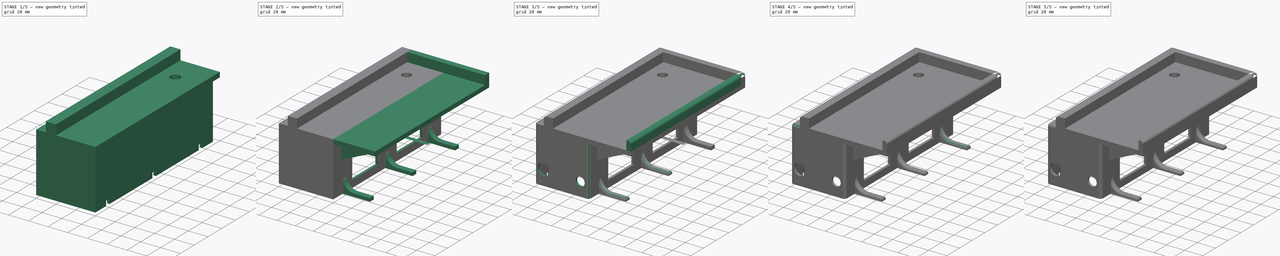
[diagram: build sequence overview — one tinted view per stage of 5, left to right]
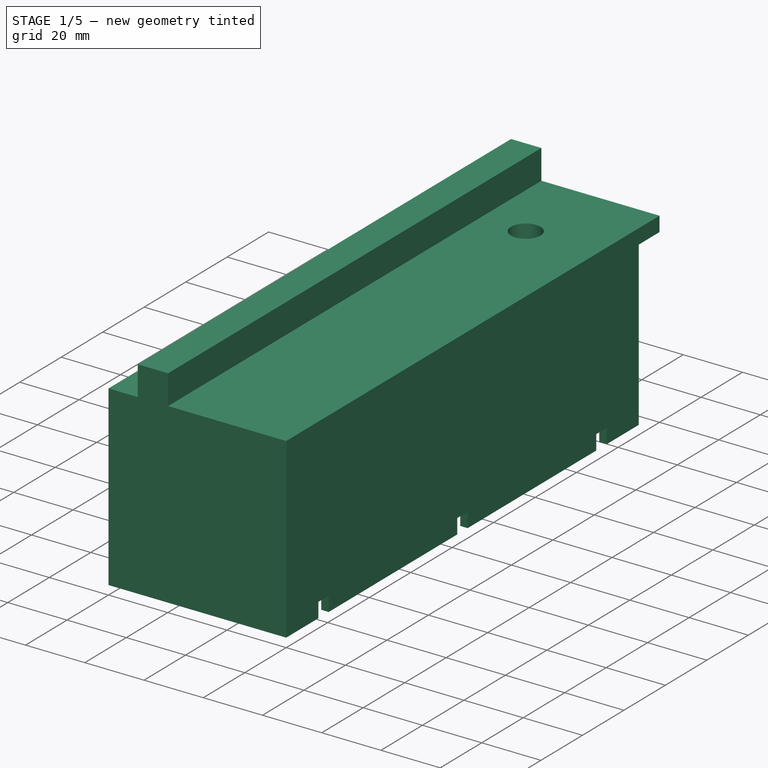
[diagram: stage 1 of 5 — iso view after this stage's code; geometry added in this stage tinted green]
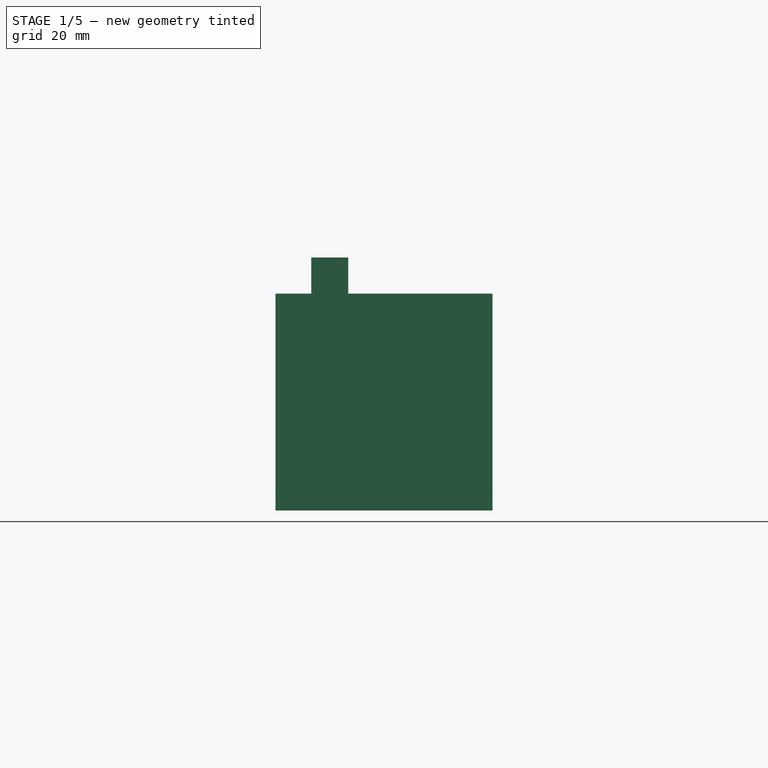
[diagram: stage 1 of 5 — front view after this stage's code; geometry added in this stage tinted green]
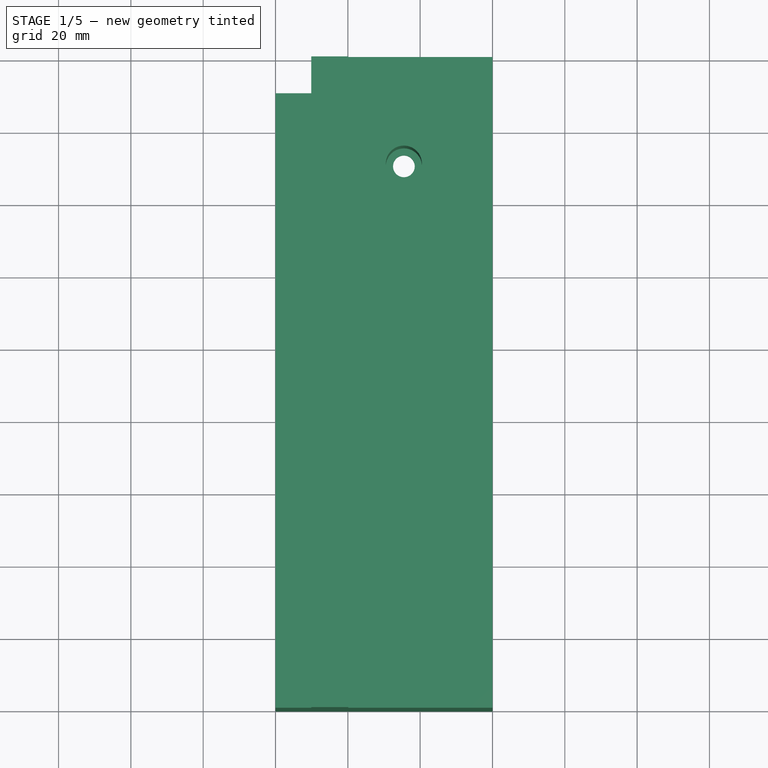
[diagram: stage 1 of 5 — top view after this stage's code; geometry added in this stage tinted green]
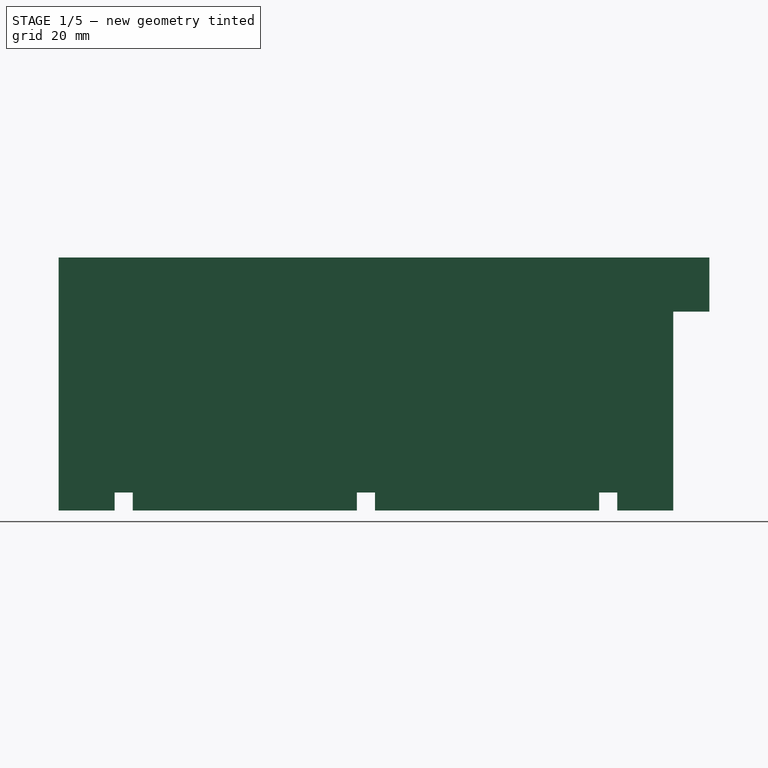
[diagram: stage 1 of 5 — right view after this stage's code; geometry added in this stage tinted green]
FCSTD DOCUMENT  (FreeCAD 1.0R38641 +468 (Git))
Label: phone_stand
License: All rights reserved
LicenseURL: http://en.wikipedia.org/wiki/All_rights_reserved
objects: Sketcher::SketchObject×23, PartDesign::Pocket×14, PartDesign::Fillet×13, PartDesign::Pad×10, PartDesign::Body×2, PartDesign::Thickness×1, Part::Feature×1, PartDesign::SubShapeBinder×1, Measure::MeasureLength×1
note: 164 computed .brp shape members not serialized (recipe doc carries the construction recipe); baked Part::Feature solids carry a one-line shape summary decoded from their .brp

FEATURE [Sketcher::SketchObject] Sketch
  ArcFitTolerance = 1e-06
  AttachmentSupport = -> [XY_Plane]
  FullyConstrained = true
  MakeInternals = false
  MapMode = 5
  sketch-geometry (4):
    g0: LineSegment StartX=0 StartY=0 StartZ=0 EndX=60 EndY=0 EndZ=0
    g1: LineSegment StartX=60 StartY=0 StartZ=0 EndX=60 EndY=170 EndZ=0
    g2: LineSegment StartX=60 StartY=170 StartZ=0 EndX=0 EndY=170 EndZ=0
    g3: LineSegment StartX=0 StartY=170 StartZ=0 EndX=0 EndY=0 EndZ=0
  constraints (11):
    c: Coincident(g0,g1)
    c: Coincident(g1,g2)
    c: Coincident(g2,g3)
    c: Coincident(g3,g0)
    c: Horizontal(g0)
    c: Horizontal(g2)
    c: Vertical(g1)
    c: Vertical(g3)
    c: Distance(g1,g3) = 60
    c: Distance(g0,g2) = 170
    c: Coincident(g0,g-1)
FEATURE [PartDesign::Pad] Pad
  Direction = (0,0,1)
  Length = 60
  Length2 = 10
  Profile = -> Sketch
  ReferenceAxis = -> Sketch [N_Axis]
  Refine = true
  Suppressed = false
  Type = 0
FEATURE [Sketcher::SketchObject] Sketch001
  ArcFitTolerance = 1e-06
  AttachmentSupport = -> [Pad]
  FullyConstrained = true
  MakeInternals = false
  MapMode = 5
  Placement = pos=(0,0,60) rot=(0,0,1;0rad)
  sketch-geometry (1):
    g0: Circle CenterX=35.5 CenterY=150.5 CenterZ=0 NormalX=0 NormalY=0 NormalZ=1 AngleXU=0 Radius=5
  constraints (3):
    c: Diameter(g0) = 10
    c: Distance(g0,g-2) = 30.5
    c: Distance(g0,g-1) = 145.5
FEATURE [PartDesign::Pocket] Pocket
  BaseFeature = -> Pad
  Direction = (0,0,-1)
  Length = 44
  Length2 = 5
  Profile = -> Sketch001 [Edge1]
  ReferenceAxis = -> Sketch001 [N_Axis]
  Refine = true
  Suppressed = false
  Type = 0
FEATURE [PartDesign::Thickness] Thickness
  Base = -> Pocket [Face4]
  BaseFeature = -> Pocket
  Intersection = false
  Join = 0
  Mode = 0
  Refine = true
  Reversed = true
  SupportTransform = false
  Suppressed = false
  Value = 2.5
FEATURE [Sketcher::SketchObject] Sketch002
  ArcFitTolerance = 1e-06
  AttachmentSupport = -> [Thickness]
  FullyConstrained = false
  MakeInternals = false
  MapMode = 5
  Placement = pos=(0,0,13.5) rot=(1,0,0;3.14159rad)
  sketch-geometry (1):
    g0: Circle CenterX=35.4983 CenterY=-150.53 CenterZ=0 NormalX=0 NormalY=0 NormalZ=1 AngleXU=0 Radius=3
  constraints (1):
    c: Diameter(g0) = 6
FEATURE [PartDesign::Pocket] Pocket001
  BaseFeature = -> Thickness
  Direction = (0,0,1)
  Length = 5
  Length2 = 5
  Profile = -> Sketch002 [Edge1]
  ReferenceAxis = -> Sketch002 [N_Axis]
  Refine = true
  Suppressed = false
  Type = 0
FEATURE [Sketcher::SketchObject] Sketch003
  ArcFitTolerance = 1e-06
  AttachmentSupport = -> [Pocket001]
  FullyConstrained = true
  MakeInternals = false
  MapMode = 5
  Placement = pos=(0,0,0) rot=(0.57735,-0.57735,-0.57735;2.0944rad)
  sketch-geometry (12):
    g0: LineSegment StartX=-15.5 StartY=0 StartZ=0 EndX=-15.5 EndY=5 EndZ=0
    g1: LineSegment StartX=-15.5 StartY=5 StartZ=0 EndX=-20.5 EndY=5 EndZ=0
    g2: LineSegment StartX=-20.5 StartY=5 StartZ=0 EndX=-20.5 EndY=0 EndZ=0
    g3: LineSegment StartX=-20.5 StartY=0 StartZ=0 EndX=-15.5 EndY=0 EndZ=0
    g4: LineSegment StartX=-87.5 StartY=0 StartZ=0 EndX=-82.5 EndY=0 EndZ=0
    g5: LineSegment StartX=-82.5 StartY=0 StartZ=0 EndX=-82.5 EndY=5 EndZ=0
    g6: LineSegment StartX=-82.5 StartY=5 StartZ=0 EndX=-87.5 EndY=5 EndZ=0
    g7: LineSegment StartX=-87.5 StartY=5 StartZ=0 EndX=-87.5 EndY=0 EndZ=0
    g8: LineSegment StartX=-149.5 StartY=0 StartZ=0 EndX=-149.5 EndY=5 EndZ=0
    g9: LineSegment StartX=-149.5 StartY=5 StartZ=0 EndX=-154.5 EndY=5 EndZ=0
    g10: LineSegment StartX=-154.5 StartY=5 StartZ=0 EndX=-154.5 EndY=0 EndZ=0
    g11: LineSegment StartX=-154.5 StartY=0 StartZ=0 EndX=-149.5 EndY=0 EndZ=0
  constraints (36):
    c: Coincident(g0,g1)
    c: Coincident(g1,g2)
    c: Coincident(g2,g3)
    c: Coincident(g3,g0)
    c: Vertical(g0)
    c: Vertical(g2)
    c: Horizontal(g1)
    c: Horizontal(g3)
    c: Distance(g0,g2) = 5
    c: Distance(g1,g3) = 5
    c: PointOnObject(g0,g-1)
    c: Distance(g-2,g0) = 15.5
    c: Coincident(g4,g5)
    c: Coincident(g5,g6)
    c: Coincident(g6,g7)
    c: Coincident(g7,g4)
    c: Horizontal(g4)
    c: Horizontal(g6)
    c: Vertical(g5)
    c: Vertical(g7)
    c: Distance(g5,g7) = 5
    c: Distance(g4,g6) = 5
    c: PointOnObject(g4,g-1)
    c: Distance(g2,g5) = 62
    c: Coincident(g8,g9)
    c: Coincident(g9,g10)
    c: Coincident(g10,g11)
    c: Coincident(g11,g8)
    c: Vertical(g8)
    c: Vertical(g10)
    c: Horizontal(g9)
    c: Horizontal(g11)
    c: Distance(g8,g10) = 5
    c: Distance(g9,g11) = 5
    c: PointOnObject(g8,g-1)
    c: Distance(g7,g8) = 62
FEATURE [PartDesign::Pocket] Pocket002
  BaseFeature = -> Pocket001
  Direction = (1,0,0)
  Length = 60
  Length2 = 5
  Profile = -> Sketch003
  ReferenceAxis = -> Sketch003 [N_Axis]
  Refine = true
  Suppressed = false
  Type = 0
FEATURE [Sketcher::SketchObject] Sketch004
  ArcFitTolerance = 1e-06
  AttachmentSupport = -> [Pocket002]
  FullyConstrained = true
  MakeInternals = false
  MapMode = 5
  Placement = pos=(0,170,0) rot=(0,0.707107,0.707107;3.14159rad)
  sketch-geometry (4):
    g0: LineSegment StartX=-57.5 StartY=0 StartZ=0 EndX=-2.5 EndY=0 EndZ=0
    g1: LineSegment StartX=-2.5 StartY=0 StartZ=0 EndX=-2.5 EndY=25 EndZ=0
    g2: LineSegment StartX=-2.5 StartY=25 StartZ=0 EndX=-57.5 EndY=25 EndZ=0
    g3: LineSegment StartX=-57.5 StartY=25 StartZ=0 EndX=-57.5 EndY=0 EndZ=0
  constraints (12):
    c: Coincident(g0,g1)
    c: Coincident(g1,g2)
    c: Coincident(g2,g3)
    c: Coincident(g3,g0)
    c: Horizontal(g0)
    c: Horizontal(g2)
    c: Vertical(g1)
    c: Vertical(g3)
    c: PointOnObject(g0,g-1)
    c: DistanceY(g1,g1) = 25
    c: Distance(g-2,g1) = 2.5
    c: DistanceX(g0,g0) = 55
FEATURE [PartDesign::Pocket] Pocket003
  BaseFeature = -> Pocket002
  Direction = (0,-1,2e-16)
  Length = 2.5
  Length2 = 5
  Profile = -> Sketch004
  ReferenceAxis = -> Sketch004 [N_Axis]
  Refine = true
  Suppressed = false
  Type = 0
FEATURE [Sketcher::SketchObject] Sketch005
  ArcFitTolerance = 1e-06
  AttachmentSupport = -> [Pocket003]
  FullyConstrained = false
  MakeInternals = false
  MapMode = 5
  Placement = pos=(0,0,60) rot=(0,0,1;0rad)
  sketch-geometry (4):
    g0: LineSegment StartX=9.875 StartY=180 StartZ=0 EndX=9.875 EndY=0 EndZ=0
    g1: LineSegment StartX=9.875 StartY=0 StartZ=0 EndX=20.125 EndY=0 EndZ=0
    g2: LineSegment StartX=20.125 StartY=0 StartZ=0 EndX=20.125 EndY=180 EndZ=0
    g3: LineSegment StartX=20.125 StartY=180 StartZ=0 EndX=9.875 EndY=180 EndZ=0
  constraints (9):
    c: Coincident(g0,g1)
    c: Coincident(g1,g2)
    c: Coincident(g2,g3)
    c: Coincident(g3,g0)
    c: Vertical(g0)
    c: Vertical(g2)
    c: Horizontal(g1)
    c: Horizontal(g3)
    c: PointOnObject(g1,g-1)
FEATURE [PartDesign::Pad] Pad001
  BaseFeature = -> Pocket003
  Direction = (0,0,1)
  Length = 10
  Length2 = 10
  Profile = -> Sketch005
  ReferenceAxis = -> Sketch005 [N_Axis]
  Refine = true
  Suppressed = false
  Type = 0
FEATURE [PartDesign::Body] Body001
  AllowCompound = false
  Group = -> [Binder,Pad002,Pocket004]
  Origin = -> Origin001
  Tip = -> Pocket004
FEATURE [Sketcher::SketchObject] Sketch006
  ArcFitTolerance = 1e-06
  AttachmentSupport = -> [Pad001]
  FullyConstrained = false
  MakeInternals = false
  MapMode = 5
  Placement = pos=(0,170,0) rot=(0,0.707107,0.707107;3.14159rad)
  sketch-geometry (4):
    g0: LineSegment StartX=-59.9967 StartY=60 StartZ=0 EndX=-59.9967 EndY=55 EndZ=0
    g1: LineSegment StartX=-59.9967 StartY=55 StartZ=0 EndX=-9.99599 EndY=55 EndZ=0
    g2: LineSegment StartX=-9.99599 StartY=55 StartZ=0 EndX=-9.99599 EndY=60 EndZ=0
    g3: LineSegment StartX=-9.99599 StartY=60 StartZ=0 EndX=-59.9967 EndY=60 EndZ=0
  constraints (9):
    c: Coincident(g0,g1)
    c: Coincident(g1,g2)
    c: Coincident(g2,g3)
    c: Coincident(g3,g0)
    c: Vertical(g0)
    c: Vertical(g2)
    c: Horizontal(g1)
    c: Horizontal(g3)
    c: Distance(g0,g0) = 5
FEATURE [PartDesign::Pad] Pad003
  BaseFeature = -> Pad001
  Direction = (0,1,-2e-16)
  Length = 10
  Length2 = 10
  Profile = -> Sketch006
  ReferenceAxis = -> Sketch006 [N_Axis]
  Refine = true
  Suppressed = false
  Type = 0
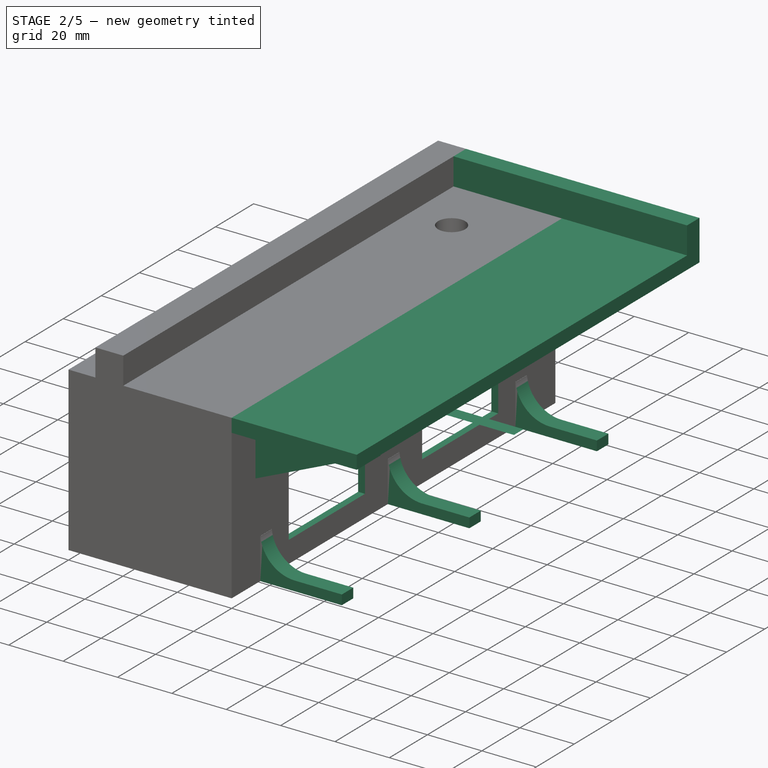
[diagram: stage 2 of 5 — iso view after this stage's code; geometry added in this stage tinted green]
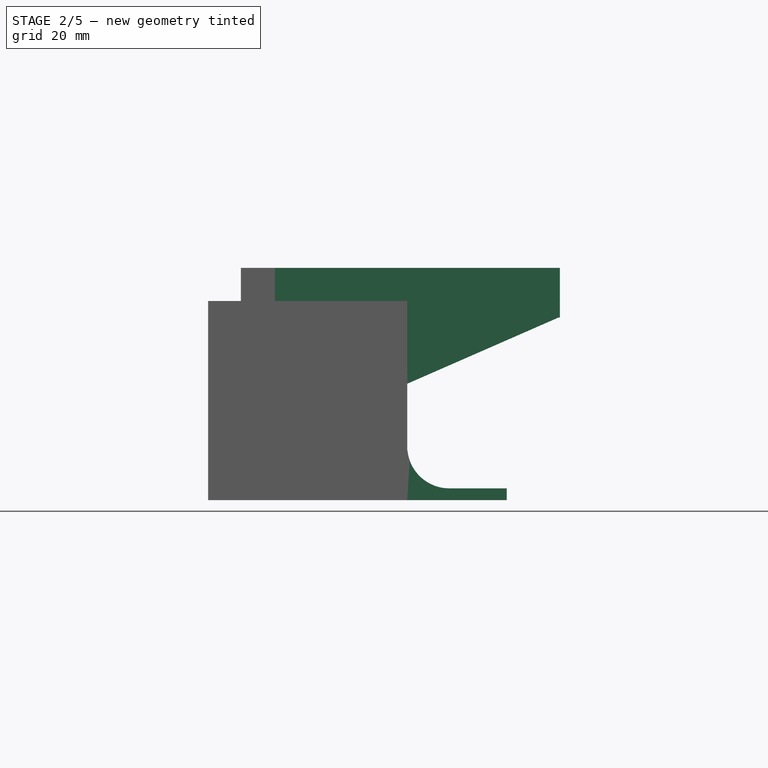
[diagram: stage 2 of 5 — front view after this stage's code; geometry added in this stage tinted green]
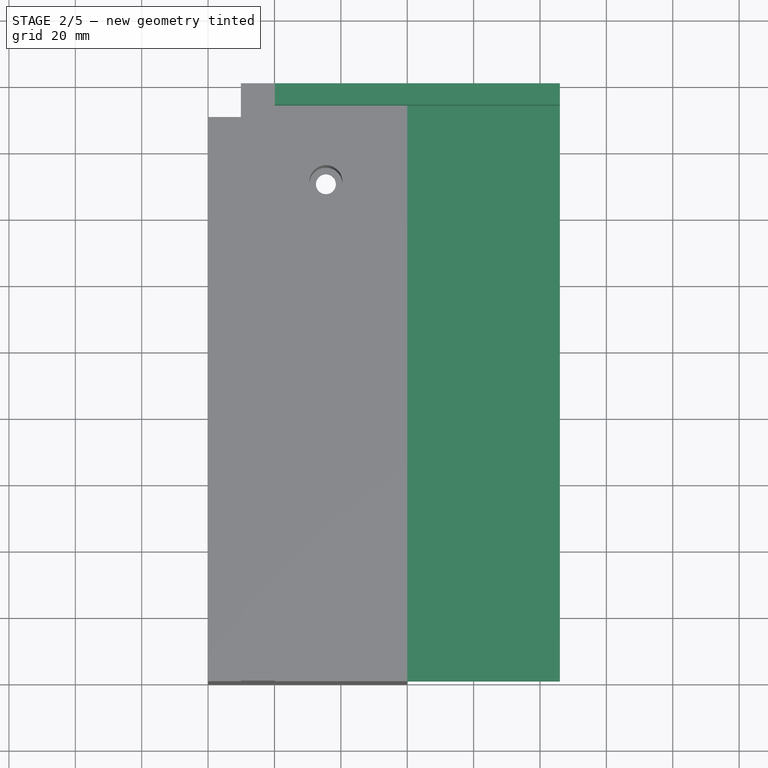
[diagram: stage 2 of 5 — top view after this stage's code; geometry added in this stage tinted green]
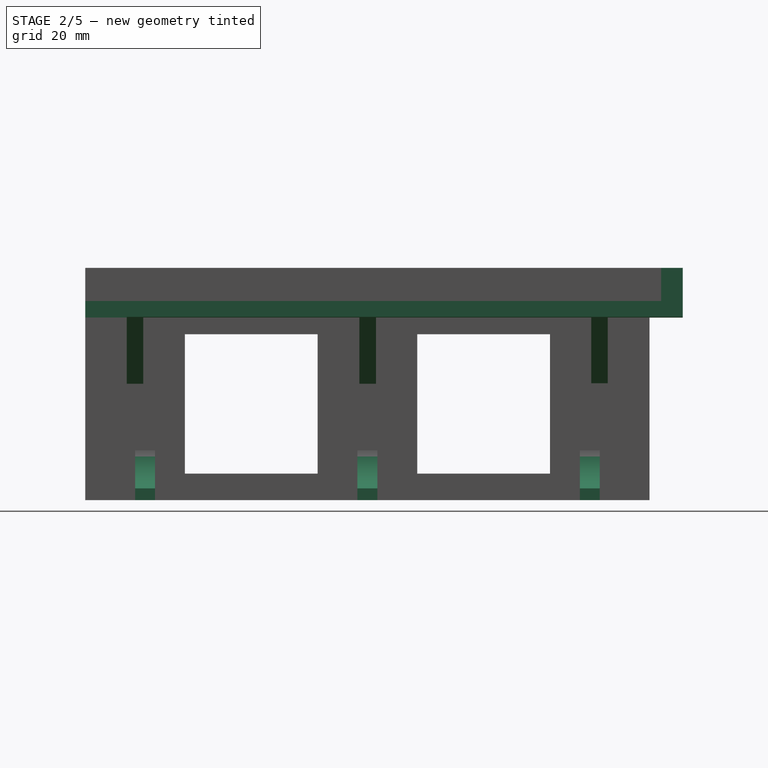
[diagram: stage 2 of 5 — right view after this stage's code; geometry added in this stage tinted green]
FEATURE [Sketcher::SketchObject] Sketch007
  ArcFitTolerance = 1e-06
  AttachmentSupport = -> [Pad003]
  FullyConstrained = false
  MakeInternals = false
  MapMode = 5
  Placement = pos=(0,1.32e-14,60) rot=(0,0,1;0rad)
  sketch-geometry (4):
    g0: LineSegment StartX=20.125 StartY=180 StartZ=0 EndX=20.125 EndY=173.48 EndZ=0
    g1: LineSegment StartX=20.125 StartY=173.48 StartZ=0 EndX=106 EndY=173.48 EndZ=0
    g2: LineSegment StartX=106 StartY=173.48 StartZ=0 EndX=106 EndY=180 EndZ=0
    g3: LineSegment StartX=106 StartY=180 StartZ=0 EndX=20.125 EndY=180 EndZ=0
  constraints (9):
    c: Coincident(g0,g1)
    c: Coincident(g1,g2)
    c: Coincident(g2,g3)
    c: Coincident(g3,g0)
    c: Vertical(g0)
    c: Vertical(g2)
    c: Horizontal(g1)
    c: Horizontal(g3)
    c: DistanceY(g2,g2) = 6.52
FEATURE [PartDesign::Pad] Pad004
  BaseFeature = -> Pad003
  Direction = (0,0,1)
  Length = 10
  Length2 = 10
  Profile = -> Sketch007
  ReferenceAxis = -> Sketch007 [N_Axis]
  Refine = true
  Suppressed = false
  Type = 0
FEATURE [Sketcher::SketchObject] Sketch008
  ArcFitTolerance = 1e-06
  AttachmentSupport = -> [Pad004]
  FullyConstrained = false
  MakeInternals = false
  MapMode = 5
  Placement = pos=(60,0,0) rot=(0.57735,0.57735,0.57735;2.0944rad)
  sketch-geometry (4):
    g0: LineSegment StartX=180 StartY=60.0204 StartZ=0 EndX=0 EndY=60.0204 EndZ=0
    g1: LineSegment StartX=0 StartY=60.0204 StartZ=0 EndX=0 EndY=55.0204 EndZ=0
    g2: LineSegment StartX=0 StartY=55.0204 StartZ=0 EndX=180 EndY=55.0204 EndZ=0
    g3: LineSegment StartX=180 StartY=55.0204 StartZ=0 EndX=180 EndY=60.0204 EndZ=0
  constraints (9):
    c: Coincident(g0,g1)
    c: Coincident(g1,g2)
    c: Coincident(g2,g3)
    c: Coincident(g3,g0)
    c: Horizontal(g0)
    c: Horizontal(g2)
    c: Vertical(g1)
    c: Vertical(g3)
    c: PointOnObject(g1,g-2)
FEATURE [PartDesign::Pad] Pad005
  BaseFeature = -> Pad004
  Direction = (1,0,0)
  Length = 46
  Length2 = 10
  Profile = -> Sketch008
  ReferenceAxis = -> Sketch008 [N_Axis]
  Refine = true
  Suppressed = false
  Type = 0
FEATURE [Sketcher::SketchObject] Sketch009
  ArcFitTolerance = 1e-06
  AttachmentSupport = -> [Pad005]
  FullyConstrained = false
  MakeInternals = false
  MapMode = 5
  Placement = pos=(60,0,0) rot=(0.57735,0.57735,0.57735;2.0944rad)
  sketch-geometry (8):
    g0: LineSegment StartX=30 StartY=8 StartZ=0 EndX=70 EndY=8 EndZ=0
    g1: LineSegment StartX=70 StartY=8 StartZ=0 EndX=70 EndY=50 EndZ=0
    g2: LineSegment StartX=70 StartY=50 StartZ=0 EndX=30 EndY=50 EndZ=0
    g3: LineSegment StartX=30 StartY=50 StartZ=0 EndX=30 EndY=8 EndZ=0
    g4: LineSegment StartX=100 StartY=50 StartZ=0 EndX=100 EndY=8 EndZ=0
    g5: LineSegment StartX=100 StartY=8 StartZ=0 EndX=140 EndY=8 EndZ=0
    g6: LineSegment StartX=140 StartY=8 StartZ=0 EndX=140 EndY=50 EndZ=0
    g7: LineSegment StartX=140 StartY=50 StartZ=0 EndX=100 EndY=50 EndZ=0
  constraints (21):
    c: Coincident(g0,g1)
    c: Coincident(g1,g2)
    c: Coincident(g2,g3)
    c: Coincident(g3,g0)
    c: Horizontal(g0)
    c: Horizontal(g2)
    c: Vertical(g1)
    c: Vertical(g3)
    c: Coincident(g4,g5)
    c: Coincident(g5,g6)
    c: Coincident(g6,g7)
    c: Coincident(g7,g4)
    c: Vertical(g4)
    c: Vertical(g6)
    c: Horizontal(g5)
    c: Horizontal(g7)
    c: Distance(g-1,g0) = 8
    c: Distance(g-1,g5) = 8
    c: Distance(g-2,g3) = 30
    c: DistanceX(g2,g2) = 40
    c: DistanceX(g7,g7) = 40
FEATURE [PartDesign::Pocket] Pocket005
  BaseFeature = -> Pad005
  Direction = (-1,0,0)
  Length = 100
  Length2 = 5
  Profile = -> Sketch009
  ReferenceAxis = -> Sketch009 [N_Axis]
  Refine = true
  Suppressed = false
  Type = 0
FEATURE [Sketcher::SketchObject] Sketch010
  ArcFitTolerance = 1e-06
  AttachmentSupport = -> [Pocket005]
  FullyConstrained = false
  MakeInternals = false
  MapMode = 5
  Placement = pos=(60,0,0) rot=(0.57735,0.57735,0.57735;2.0944rad)
  sketch-geometry (12):
    g0: LineSegment StartX=12.4815 StartY=55.0899 StartZ=0 EndX=12.4815 EndY=35.0899 EndZ=0
    g1: LineSegment StartX=12.4815 StartY=35.0899 StartZ=0 EndX=17.4815 EndY=35.0899 EndZ=0
    g2: LineSegment StartX=17.4815 StartY=35.0899 StartZ=0 EndX=17.4815 EndY=55.0899 EndZ=0
    g3: LineSegment StartX=17.4815 StartY=55.0899 StartZ=0 EndX=12.4815 EndY=55.0899 EndZ=0
    g4: LineSegment StartX=82.574 StartY=55.0761 StartZ=0 EndX=82.574 EndY=35.0761 EndZ=0
    g5: LineSegment StartX=82.574 StartY=35.0761 StartZ=0 EndX=87.574 EndY=35.0761 EndZ=0
    g6: LineSegment StartX=87.574 StartY=35.0761 StartZ=0 EndX=87.574 EndY=55.0761 EndZ=0
    g7: LineSegment StartX=87.574 StartY=55.0761 StartZ=0 EndX=82.574 EndY=55.0761 EndZ=0
    g8: LineSegment StartX=152.424 StartY=55.2134 StartZ=0 EndX=152.424 EndY=35.2134 EndZ=0
    g9: LineSegment StartX=152.424 StartY=35.2134 StartZ=0 EndX=157.424 EndY=35.2134 EndZ=0
    g10: LineSegment StartX=157.424 StartY=35.2134 StartZ=0 EndX=157.424 EndY=55.2134 EndZ=0
    g11: LineSegment StartX=157.424 StartY=55.2134 StartZ=0 EndX=152.424 EndY=55.2134 EndZ=0
  constraints (30):
    c: Coincident(g0,g1)
    c: Coincident(g1,g2)
    c: Coincident(g2,g3)
    c: Coincident(g3,g0)
    c: Vertical(g0)
    c: Vertical(g2)
    c: Horizontal(g1)
    c: Horizontal(g3)
    c: Coincident(g4,g5)
    c: Coincident(g5,g6)
    c: Coincident(g6,g7)
    c: Coincident(g7,g4)
    c: Vertical(g4)
    c: Vertical(g6)
    c: Horizontal(g5)
    c: Horizontal(g7)
    c: Coincident(g8,g9)
    c: Coincident(g9,g10)
    c: Coincident(g10,g11)
    c: Coincident(g11,g8)
    c: Vertical(g8)
    c: Vertical(g10)
    c: Horizontal(g9)
    c: Horizontal(g11)
    c: DistanceY(g2,g2) = 20
    c: DistanceX(g1,g1) = 5
    c: DistanceY(g6,g6) = 20
    c: DistanceX(g5,g5) = 5
    c: DistanceX(g9,g9) = 5
    c: DistanceY(g10,g10) = 20
FEATURE [PartDesign::Pad] Pad006
  BaseFeature = -> Pocket005
  Direction = (1,0,0)
  Length = 46
  Length2 = 10
  Profile = -> Sketch010
  ReferenceAxis = -> Sketch010 [N_Axis]
  Refine = true
  Suppressed = false
  Type = 0
FEATURE [Sketcher::SketchObject] Sketch011
  ArcFitTolerance = 1e-06
  AttachmentSupport = -> [Pad006]
  FullyConstrained = false
  MakeInternals = false
  MapMode = 5
  Placement = pos=(0,12.4815,0) rot=(1,0,0;1.5708rad)
  sketch-geometry (3):
    g0: LineSegment StartX=60.0003 StartY=35.078 StartZ=0 EndX=106 EndY=55.213 EndZ=0
    g1: LineSegment StartX=106 StartY=55.213 StartZ=0 EndX=106 EndY=35.078 EndZ=0
    g2: LineSegment StartX=106 StartY=35.078 StartZ=0 EndX=60.0003 EndY=35.078 EndZ=0
  constraints (5):
    c: Coincident(g1,g0)
    c: Vertical(g1)
    c: Coincident(g2,g1)
    c: Coincident(g2,g0)
    c: Horizontal(g2)
FEATURE [PartDesign::Pocket] Pocket006
  BaseFeature = -> Pad006
  Direction = (0,1,-2e-16)
  Length = 200
  Length2 = 5
  Profile = -> Sketch011
  ReferenceAxis = -> Sketch011 [N_Axis]
  Refine = true
  Suppressed = false
  Type = 0
FEATURE [Sketcher::SketchObject] Sketch012
  ArcFitTolerance = 1e-06
  AttachmentSupport = -> [Pocket006]
  FullyConstrained = false
  MakeInternals = false
  MapMode = 5
  Placement = pos=(60,0,0) rot=(0.57735,0.57735,0.57735;2.0944rad)
  sketch-geometry (12):
    g0: LineSegment StartX=149 StartY=0 StartZ=0 EndX=155 EndY=0 EndZ=0
    g1: LineSegment StartX=155 StartY=0 StartZ=0 EndX=155 EndY=15 EndZ=0
    g2: LineSegment StartX=155 StartY=15 StartZ=0 EndX=149 EndY=15 EndZ=0
    g3: LineSegment StartX=149 StartY=15 StartZ=0 EndX=149 EndY=0 EndZ=0
    g4: LineSegment StartX=81.9947 StartY=15 StartZ=0 EndX=81.9947 EndY=0 EndZ=0
    g5: LineSegment StartX=81.9947 StartY=0 StartZ=0 EndX=88.0053 EndY=0 EndZ=0
    g6: LineSegment StartX=88.0053 StartY=0 StartZ=0 EndX=88.0053 EndY=15 EndZ=0
    g7: LineSegment StartX=88.0053 StartY=15 StartZ=0 EndX=81.9947 EndY=15 EndZ=0
    g8: LineSegment StartX=15.007 StartY=15 StartZ=0 EndX=15.007 EndY=0 EndZ=0
    g9: LineSegment StartX=15.007 StartY=0 StartZ=0 EndX=20.993 EndY=0 EndZ=0
    g10: LineSegment StartX=20.993 StartY=0 StartZ=0 EndX=20.993 EndY=15 EndZ=0
    g11: LineSegment StartX=20.993 StartY=15 StartZ=0 EndX=15.007 EndY=15 EndZ=0
  constraints (26):
    c: Coincident(g0,g1)
    c: Coincident(g1,g2)
    c: Coincident(g2,g3)
    c: Coincident(g3,g0)
    c: Horizontal(g0)
    c: Horizontal(g2)
    c: Vertical(g1)
    c: Vertical(g3)
    c: Coincident(g4,g5)
    c: Coincident(g5,g6)
    c: Coincident(g6,g7)
    c: Coincident(g7,g4)
    c: Vertical(g4)
    c: Vertical(g6)
    c: Horizontal(g5)
    c: Horizontal(g7)
    c: PointOnObject(g5,g-1)
    c: Coincident(g8,g9)
    c: Coincident(g9,g10)
    c: Coincident(g10,g11)
    c: Coincident(g11,g8)
    c: Vertical(g8)
    c: Vertical(g10)
    c: Horizontal(g9)
    c: Horizontal(g11)
    c: PointOnObject(g9,g-1)
FEATURE [PartDesign::Pad] Pad007
  BaseFeature = -> Pocket006
  Direction = (1,0,0)
  Length = 30
  Length2 = 10
  Profile = -> Sketch012
  ReferenceAxis = -> Sketch012 [N_Axis]
  Refine = true
  Suppressed = false
  Type = 0
FEATURE [Sketcher::SketchObject] Sketch013
  ArcFitTolerance = 1e-06
  AttachmentSupport = -> [Pad007]
  FullyConstrained = false
  MakeInternals = false
  MapMode = 5
  Placement = pos=(0,15.007,0) rot=(1,0,0;1.5708rad)
  sketch-geometry (5):
    g0: Circle CenterX=72.6476 CenterY=16.2003 CenterZ=0 NormalX=0 NormalY=0 NormalZ=1 AngleXU=0 Radius=12.6304
    g1: LineSegment StartX=72.649 StartY=3.56994 StartZ=0 EndX=100 EndY=3.56994 EndZ=0
    g2: LineSegment StartX=100 StartY=3.56994 StartZ=0 EndX=100 EndY=16.0528 EndZ=0
    g3: LineSegment StartX=100 StartY=16.0528 StartZ=0 EndX=72.649 EndY=16.0528 EndZ=0
    g4: LineSegment StartX=72.649 StartY=16.0528 StartZ=0 EndX=72.649 EndY=3.56994 EndZ=0
  constraints (9):
    c: Coincident(g1,g2)
    c: Coincident(g2,g3)
    c: Coincident(g3,g4)
    c: Coincident(g4,g1)
    c: Horizontal(g1)
    c: Horizontal(g3)
    c: Vertical(g2)
    c: Vertical(g4)
    c: PointOnObject(g1,g0)
FEATURE [PartDesign::Pocket] Pocket007
  BaseFeature = -> Pad007
  Direction = (0,1,-2e-16)
  Length = 200
  Length2 = 5
  Profile = -> Sketch013
  ReferenceAxis = -> Sketch013 [N_Axis]
  Refine = true
  Suppressed = false
  Type = 0
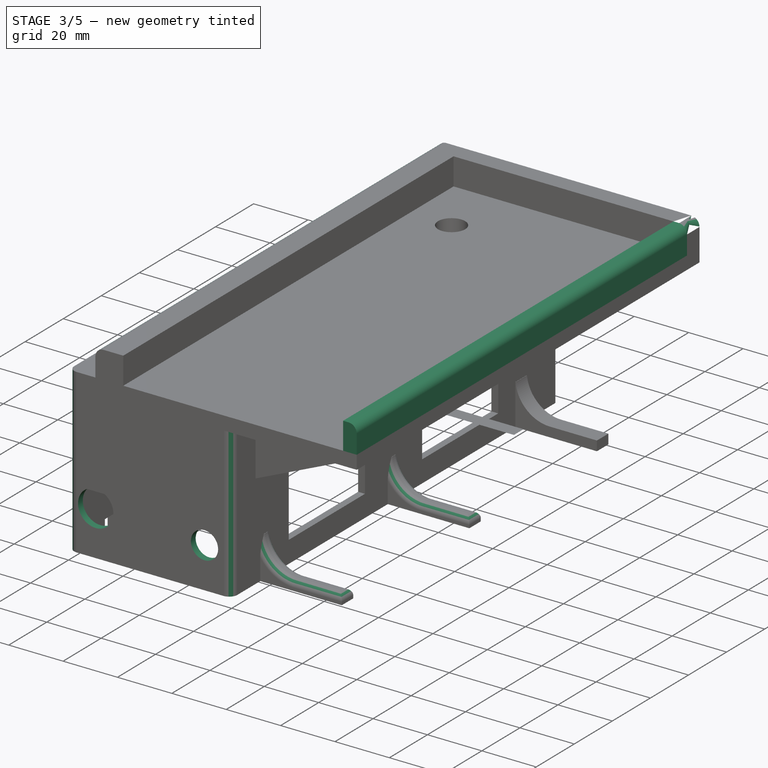
[diagram: stage 3 of 5 — iso view after this stage's code; geometry added in this stage tinted green]
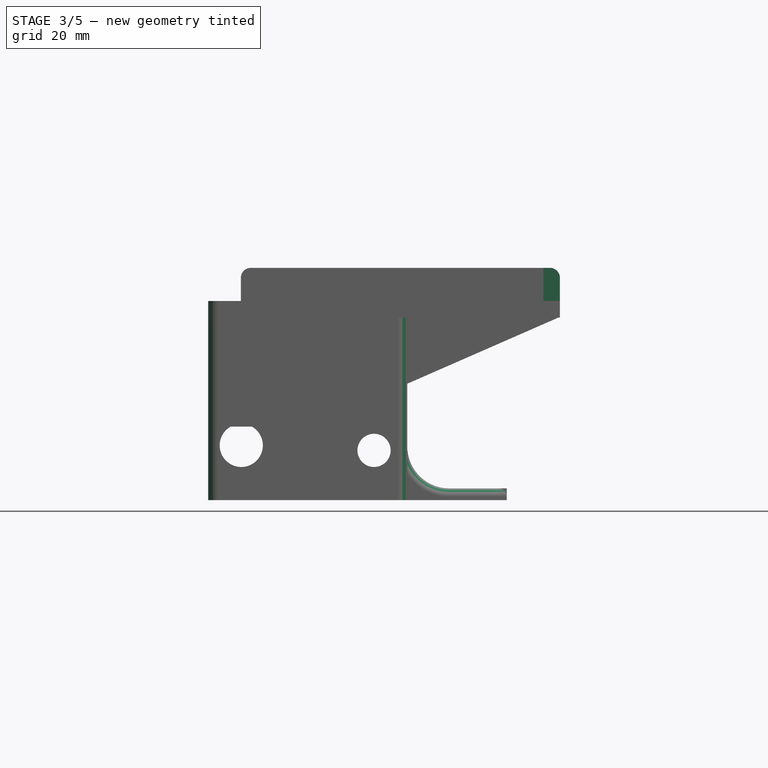
[diagram: stage 3 of 5 — front view after this stage's code; geometry added in this stage tinted green]
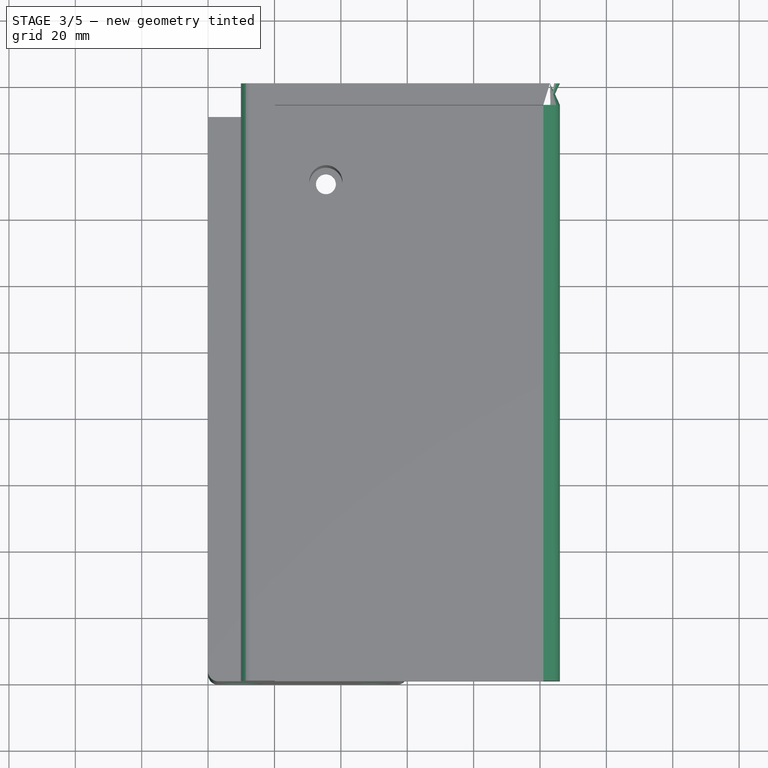
[diagram: stage 3 of 5 — top view after this stage's code; geometry added in this stage tinted green]
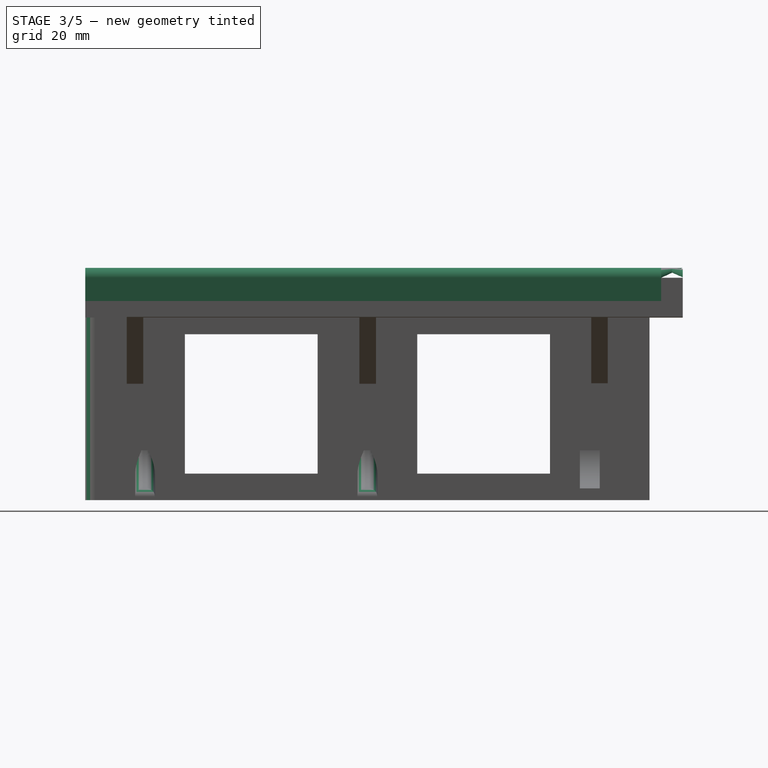
[diagram: stage 3 of 5 — right view after this stage's code; geometry added in this stage tinted green]
FEATURE [Sketcher::SketchObject] Sketch014
  ArcFitTolerance = 1e-06
  AttachmentSupport = -> [Pocket007]
  FullyConstrained = false
  MakeInternals = false
  MapMode = 5
  Placement = pos=(0,0,0) rot=(1,0,0;1.5708rad)
  sketch-geometry (3):
    g0: Circle CenterX=50 CenterY=15 CenterZ=0 NormalX=0 NormalY=0 NormalZ=1 AngleXU=0 Radius=5
    g1: ArcOfCircle CenterX=10 CenterY=16.5 CenterZ=0 NormalX=0 NormalY=0 NormalZ=1 AngleXU=0 Radius=6.5 StartAngle=2.08795 EndAngle=7.33683
    g2: LineSegment StartX=6.78636 StartY=22.15 StartZ=0 EndX=13.2136 EndY=22.15 EndZ=0
  constraints (8):
    c: Diameter(g0) = 10
    c: Distance(g0,g-1) = 10
    c: Coincident(g2,g1)
    c: Coincident(g2,g1)
    c: Horizontal(g2)
    c: Distance(g1,g2) = 5.65
    c: Radius(g1) = 6.5
    c: Distance(g1,g-1) = 10
FEATURE [PartDesign::Pocket] Pocket008
  BaseFeature = -> Pocket007
  Direction = (0,1,-2e-16)
  Length = 5
  Length2 = 5
  Profile = -> Sketch014
  ReferenceAxis = -> Sketch014 [N_Axis]
  Refine = true
  Suppressed = false
  Type = 0
FEATURE [Sketcher::SketchObject] Sketch015
  ArcFitTolerance = 1e-06
  AttachmentSupport = -> [Pocket008]
  FullyConstrained = false
  MakeInternals = false
  MapMode = 5
  Placement = pos=(0,0,60) rot=(0,0,1;0rad)
  sketch-geometry (4):
    g0: LineSegment [constr] StartX=100 StartY=173.463 StartZ=0 EndX=100 EndY=0 EndZ=0
    g1: LineSegment [constr] StartX=100 StartY=0 StartZ=0 EndX=106.049 EndY=0 EndZ=0
    g2: LineSegment [constr] StartX=106.049 StartY=0 StartZ=0 EndX=106.049 EndY=173.463 EndZ=0
    g3: LineSegment [constr] StartX=106.049 StartY=173.463 StartZ=0 EndX=100 EndY=173.463 EndZ=0
  constraints (9):
    c: Coincident(g0,g1)
    c: Coincident(g1,g2)
    c: Coincident(g2,g3)
    c: Coincident(g3,g0)
    c: Vertical(g0)
    c: Vertical(g2)
    c: Horizontal(g1)
    c: Horizontal(g3)
    c: PointOnObject(g1,g-1)
FEATURE [Sketcher::SketchObject] Sketch016
  ArcFitTolerance = 1e-06
  AttachmentSupport = -> [Pocket008]
  FullyConstrained = false
  MakeInternals = false
  MapMode = 5
  Placement = pos=(0,0,60) rot=(0,0,1;0rad)
  sketch-geometry (4):
    g0: LineSegment StartX=101 StartY=173.51 StartZ=0 EndX=101 EndY=0 EndZ=0
    g1: LineSegment StartX=101 StartY=0 StartZ=0 EndX=106 EndY=0 EndZ=0
    g2: LineSegment StartX=106 StartY=0 StartZ=0 EndX=106 EndY=173.51 EndZ=0
    g3: LineSegment StartX=106 StartY=173.51 StartZ=0 EndX=101 EndY=173.51 EndZ=0
  constraints (10):
    c: Coincident(g0,g1)
    c: Coincident(g1,g2)
    c: Coincident(g2,g3)
    c: Coincident(g3,g0)
    c: Vertical(g0)
    c: Vertical(g2)
    c: Horizontal(g1)
    c: Horizontal(g3)
    c: PointOnObject(g1,g-1)
    c: Distance(g1,g1) = 5
FEATURE [PartDesign::Pad] Pad008
  BaseFeature = -> Pocket008
  Direction = (0,0,1)
  Length = 10
  Length2 = 10
  Profile = -> Sketch016
  ReferenceAxis = -> Sketch016 [N_Axis]
  Refine = true
  Suppressed = false
  Type = 0
FEATURE [PartDesign::Fillet] Fillet
  Base = -> Pad008 [Edge325]
  BaseFeature = -> Pad008
  Radius = 3
  Refine = true
  SupportTransform = false
  Suppressed = false
  UseAllEdges = false
FEATURE [PartDesign::Fillet] Fillet001
  Base = -> Fillet [Edge38]
  BaseFeature = -> Fillet
  Radius = 3
  Refine = true
  SupportTransform = false
  Suppressed = false
  UseAllEdges = false
FEATURE [PartDesign::Fillet] Fillet002
  Base = -> Fillet001 [Edge34]
  BaseFeature = -> Fillet001
  Radius = 3
  Refine = true
  SupportTransform = false
  Suppressed = false
  UseAllEdges = false
FEATURE [PartDesign::Fillet] Fillet003
  Base = -> Fillet002 [Edge6]
  BaseFeature = -> Fillet002
  Radius = 3
  Refine = true
  SupportTransform = false
  Suppressed = false
  UseAllEdges = false
FEATURE [PartDesign::Fillet] Fillet004
  Base = -> Fillet003 [Edge160,Edge165,Edge193,Edge192,Edge161]
  BaseFeature = -> Fillet003
  Radius = 2.5
  Refine = true
  SupportTransform = false
  Suppressed = false
  UseAllEdges = false
FEATURE [PartDesign::Fillet] Fillet005
  Base = -> Fillet004 [Edge104,Edge252,Edge94,Edge95,Edge103]
  BaseFeature = -> Fillet004
  Radius = 2.5
  Refine = true
  SupportTransform = false
  Suppressed = false
  UseAllEdges = false
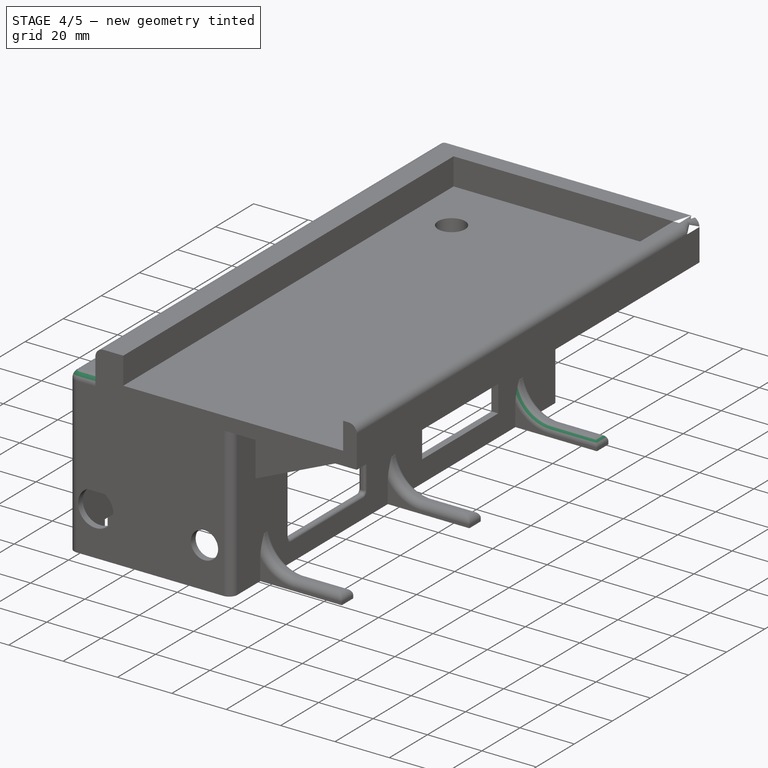
[diagram: stage 4 of 5 — iso view after this stage's code; geometry added in this stage tinted green]
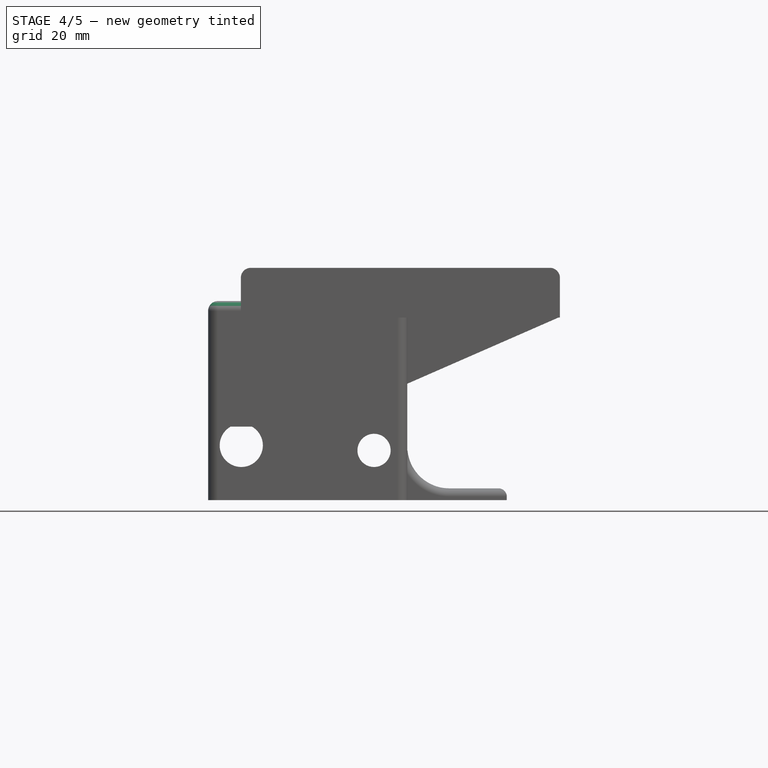
[diagram: stage 4 of 5 — front view after this stage's code; geometry added in this stage tinted green]
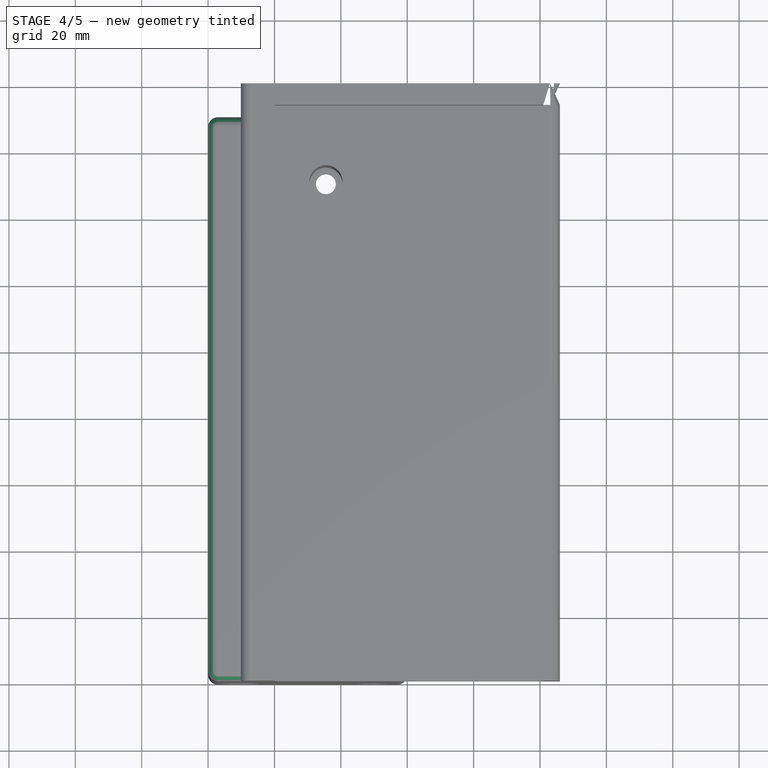
[diagram: stage 4 of 5 — top view after this stage's code; geometry added in this stage tinted green]
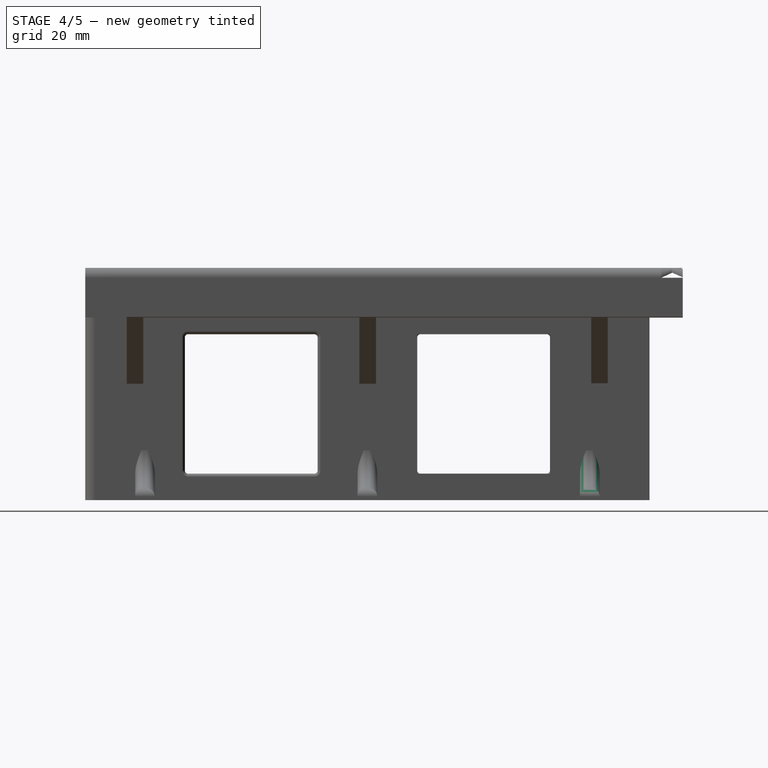
[diagram: stage 4 of 5 — right view after this stage's code; geometry added in this stage tinted green]
FEATURE [PartDesign::Fillet] Fillet006
  Base = -> Fillet005 [Edge103,Edge104,Edge264,Edge96,Edge97]
  BaseFeature = -> Fillet005
  Radius = 2.5
  Refine = true
  SupportTransform = false
  Suppressed = false
  UseAllEdges = false
FEATURE [Sketcher::SketchObject] Sketch017
  ArcFitTolerance = 1e-06
  AttachmentSupport = -> [Fillet006]
  FullyConstrained = false
  MakeInternals = false
  MapMode = 5
  Placement = pos=(0,0,35.0761) rot=(1,0,0;3.14159rad)
  sketch-geometry (4):
    g0: LineSegment StartX=106.501 StartY=-81.7005 StartZ=0 EndX=59.8019 EndY=-81.7005 EndZ=0
    g1: LineSegment StartX=59.8019 StartY=-81.7005 StartZ=0 EndX=59.8019 EndY=-88.7005 EndZ=0
    g2: LineSegment StartX=59.8019 StartY=-88.7005 StartZ=0 EndX=106.501 EndY=-88.7005 EndZ=0
    g3: LineSegment StartX=106.501 StartY=-88.7005 StartZ=0 EndX=106.501 EndY=-81.7005 EndZ=0
  constraints (8):
    c: Coincident(g0,g1)
    c: Coincident(g1,g2)
    c: Coincident(g2,g3)
    c: Coincident(g3,g0)
    c: Horizontal(g0)
    c: Horizontal(g2)
    c: Vertical(g1)
    c: Vertical(g3)
FEATURE [PartDesign::Pocket] Pocket009
  BaseFeature = -> Fillet006
  Direction = (0,0,1)
  Length = 5
  Length2 = 5
  Profile = -> Sketch017
  ReferenceAxis = -> Sketch017 [N_Axis]
  Refine = true
  Suppressed = false
  Type = 2
FEATURE [PartDesign::Fillet] Fillet007
  Base = -> Pocket009 [Edge94]
  BaseFeature = -> Pocket009
  Radius = 3
  Refine = true
  SupportTransform = false
  Suppressed = false
  UseAllEdges = false
FEATURE [PartDesign::Fillet] Fillet008
  Base = -> Fillet007 [Edge45]
  BaseFeature = -> Fillet007
  Radius = 3
  Refine = true
  SupportTransform = false
  Suppressed = false
  UseAllEdges = false
FEATURE [PartDesign::Fillet] Fillet009
  Base = -> Fillet008 [Face104,Face105,Face103,Face102]
  BaseFeature = -> Fillet008
  Radius = 1
  Refine = true
  SupportTransform = false
  Suppressed = false
  UseAllEdges = false
FEATURE [PartDesign::Fillet] Fillet010
  Base = -> Fillet009 [Face28,Face27,Face29,Face26]
  BaseFeature = -> Fillet009
  Radius = 1
  Refine = true
  SupportTransform = false
  Suppressed = false
  UseAllEdges = false
FEATURE [PartDesign::Fillet] Fillet011
  Base = -> Fillet010 [Face143,Face144,Face146,Face145]
  BaseFeature = -> Fillet010
  Radius = 1
  Refine = true
  SupportTransform = false
  Suppressed = false
  UseAllEdges = false
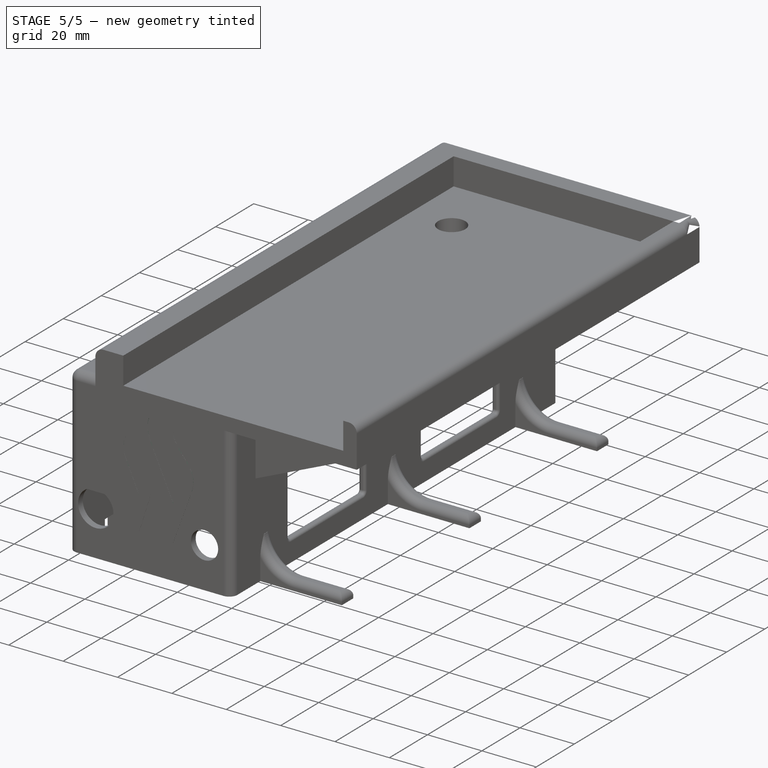
[diagram: stage 5 of 5 — iso view after this stage's code; geometry added in this stage tinted green]
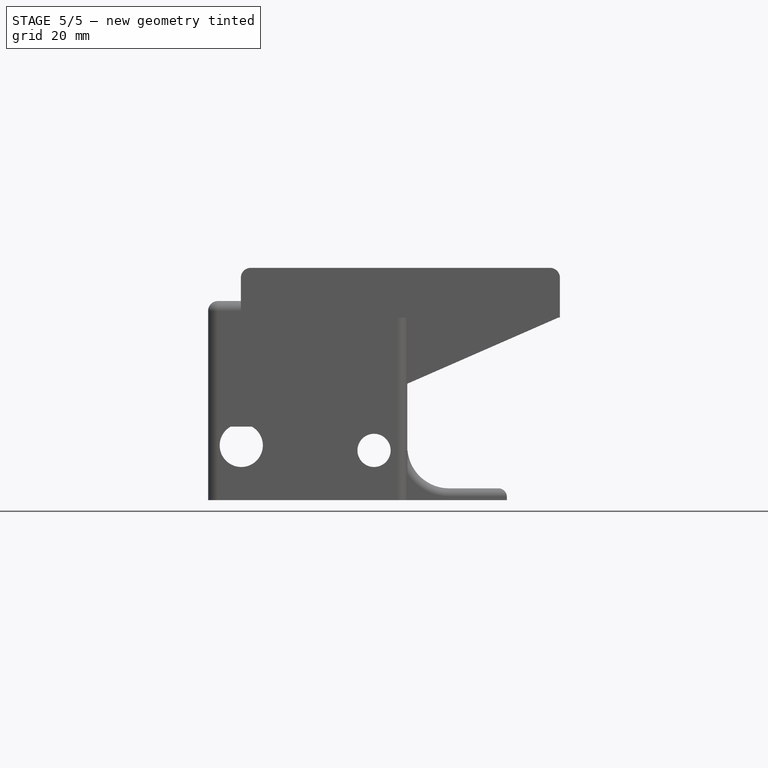
[diagram: stage 5 of 5 — front view after this stage's code; geometry added in this stage tinted green]
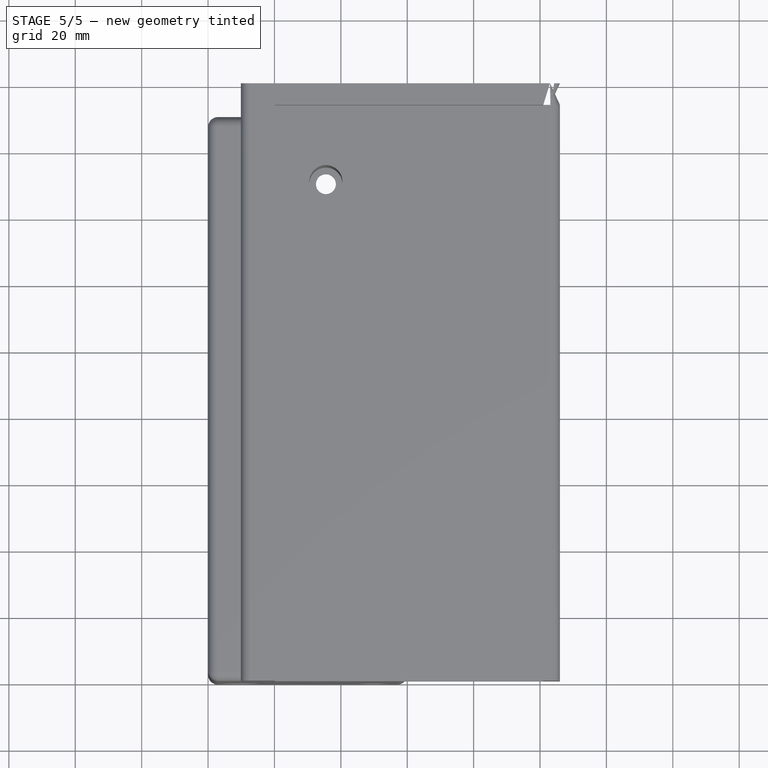
[diagram: stage 5 of 5 — top view after this stage's code; geometry added in this stage tinted green]
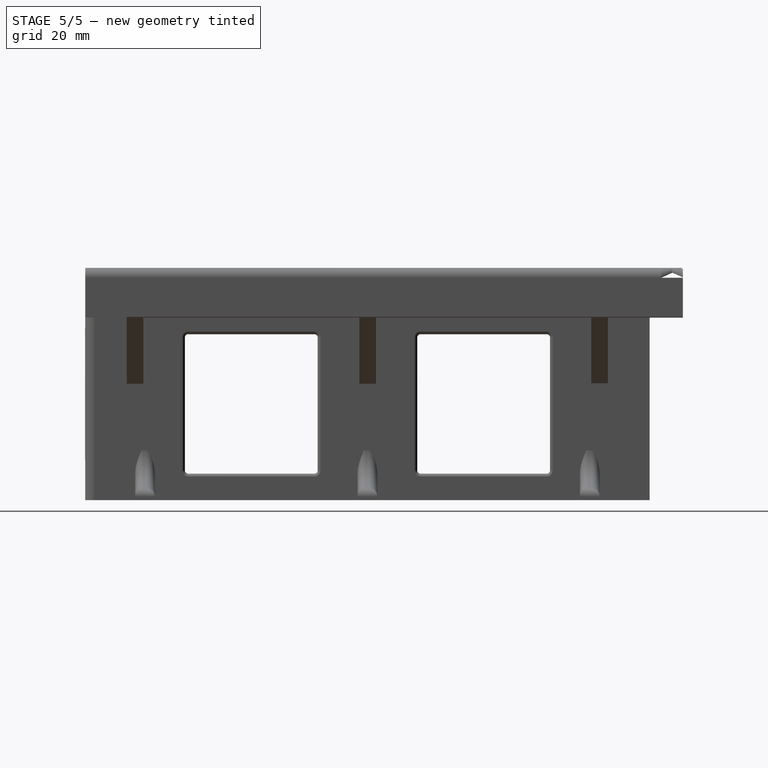
[diagram: stage 5 of 5 — right view after this stage's code; geometry added in this stage tinted green]
FEATURE [Part::Feature] path279
  Placement = pos=(7,-0.04,59) rot=(1,0,0;1.5708rad)
  shape: bbox 30.6 x 2e-07 x 39.73 mm, 1 faces, 0 solids (baked)
FEATURE [PartDesign::SubShapeBinder] Binder
  BindCopyOnChange = 0
  BindMode = 0
  ClaimChildren = false
  Context = -> Body001 [Binder.]
  Fuse = false
  MakeFace = true
  OffsetFill = false
  OffsetIntersection = false
  OffsetJoinType = 0
  OffsetOpenResult = false
  PartialLoad = false
  Refine = true
  Relative = true
  Support = -> [path279]
  _Version = 2
FEATURE [PartDesign::Pad] Pad002
  Direction = (0,1,-2e-16)
  Length = 2.5
  Length2 = 10
  Profile = -> Binder
  Refine = true
  Suppressed = false
  Type = 0
FEATURE [PartDesign::Pocket] Pocket004
  BaseFeature = -> Pad002
  Direction = (0,1,-2e-16)
  Length = 2.5
  Length2 = 5
  Profile = -> Pad002 [Face54]
  Refine = true
  Reversed = true
  Suppressed = false
  Type = 0
FEATURE [PartDesign::Fillet] Fillet012
  Base = -> Fillet011 [Face46,Face44,Face45,Face47]
  BaseFeature = -> Fillet011
  Radius = 1
  Refine = true
  SupportTransform = false
  Suppressed = false
  UseAllEdges = false
FEATURE [Sketcher::SketchObject] Sketch019
  ArcFitTolerance = 1e-06
  AttachmentSupport = -> [Fillet012]
  FullyConstrained = false
  MakeInternals = false
  MapMode = 5
  Placement = pos=(0,2.5,0) rot=(0,0.707107,0.707107;3.14159rad)
  sketch-geometry (4):
    g0: ArcOfCircle CenterX=-31.5028 CenterY=7.67979 CenterZ=0 NormalX=0 NormalY=0 NormalZ=1 AngleXU=0 Radius=5 StartAngle=3.14159 EndAngle=6.28319
    g1: ArcOfCircle CenterX=-31.5028 CenterY=23.6798 CenterZ=0 NormalX=0 NormalY=0 NormalZ=1 AngleXU=0 Radius=5 StartAngle=0 EndAngle=3.14159
    g2: LineSegment StartX=-36.5028 StartY=7.67979 StartZ=0 EndX=-36.5028 EndY=23.6798 EndZ=0
    g3: LineSegment StartX=-26.5028 StartY=7.67979 StartZ=0 EndX=-26.5028 EndY=23.6798 EndZ=0
  constraints (8):
    c: Tangent(g0,g2) = 1.5708
    c: Tangent(g0,g3) = -1.5708
    c: Tangent(g1,g2) = 1.5708
    c: Tangent(g1,g3) = -1.5708
    c: Equal(g0,g1)
    c: Vertical(g3)
    c: Distance(g0,g1) = 16
    c: Distance(g3,g2) = 10
FEATURE [PartDesign::Pocket] Pocket010
  BaseFeature = -> Fillet012
  Direction = (0,-1,2e-16)
  Length = 1.5
  Length2 = 5
  Profile = -> Sketch019
  ReferenceAxis = -> Sketch019 [N_Axis]
  Refine = true
  Suppressed = false
  Type = 0
FEATURE [Sketcher::SketchObject] Sketch020
  ArcFitTolerance = 1e-06
  AttachmentSupport = -> [Pocket010]
  FullyConstrained = false
  MakeInternals = false
  MapMode = 5
  Placement = pos=(0,167.5,0) rot=(1,0,0;1.5708rad)
  sketch-geometry (12):
    g0: LineSegment StartX=3.88917 StartY=53.137 StartZ=0 EndX=3.88917 EndY=48.137 EndZ=0
    g1: LineSegment StartX=6.38917 StartY=45.637 StartZ=0 EndX=27.3892 EndY=45.637 EndZ=0
    g2: LineSegment StartX=29.8892 StartY=48.137 StartZ=0 EndX=29.8892 EndY=53.137 EndZ=0
    g3: LineSegment StartX=27.3892 StartY=55.637 StartZ=0 EndX=6.38917 EndY=55.637 EndZ=0
    g4: ArcOfCircle CenterX=6.38917 CenterY=53.137 CenterZ=0 NormalX=0 NormalY=0 NormalZ=1 AngleXU=0 Radius=2.5 StartAngle=1.5708 EndAngle=3.14159
    g5: GeomPoint [constr] X=3.88917 Y=55.637 Z=0
    g6: ArcOfCircle CenterX=6.38917 CenterY=48.137 CenterZ=0 NormalX=0 NormalY=0 NormalZ=1 AngleXU=0 Radius=2.5 StartAngle=3.14159 EndAngle=4.71239
    g7: GeomPoint [constr] X=3.88917 Y=45.637 Z=0
    g8: ArcOfCircle CenterX=27.3892 CenterY=48.137 CenterZ=0 NormalX=0 NormalY=0 NormalZ=1 AngleXU=0 Radius=2.5 StartAngle=4.71239 EndAngle=6.28319
    g9: GeomPoint [constr] X=29.8892 Y=45.637 Z=0
    g10: ArcOfCircle CenterX=27.3892 CenterY=53.137 CenterZ=0 NormalX=0 NormalY=0 NormalZ=1 AngleXU=0 Radius=2.5 StartAngle=6e-16 EndAngle=1.5708
    g11: GeomPoint [constr] X=29.8892 Y=55.637 Z=0
  constraints (26):
    c: Vertical(g0)
    c: Vertical(g2)
    c: Horizontal(g1)
    c: Horizontal(g3)
    c: DistanceX(g7,g9) = 26
    c: Distance(g9,g11) = 10
    c: PointOnObject(g5,g0)
    c: PointOnObject(g5,g3)
    c: Tangent(g0,g4) = -1.5708
    c: Tangent(g3,g4) = -1.5708
    c: PointOnObject(g7,g0)
    c: PointOnObject(g7,g1)
    c: Tangent(g0,g6) = -1.5708
    c: Tangent(g1,g6) = -1.5708
    c: PointOnObject(g9,g1)
    c: PointOnObject(g9,g2)
    c: Tangent(g1,g8) = -1.5708
    c: Tangent(g2,g8) = -1.5708
    c: PointOnObject(g11,g2)
    c: PointOnObject(g11,g3)
    c: Tangent(g2,g10) = -1.5708
    c: Tangent(g3,g10) = -1.5708
    c: DistanceX(g7,g6) = 2.5
    c: Distance(g4,g0) = 2.5
    c: Distance(g10,g2) = 2.5
    c: Distance(g8,g2) = 2.5
FEATURE [PartDesign::Pocket] Pocket011
  BaseFeature = -> Pocket010
  Direction = (0,1,-2e-16)
  Length = 1.5
  Length2 = 5
  Profile = -> Sketch020
  ReferenceAxis = -> Sketch020 [N_Axis]
  Refine = true
  Suppressed = false
  Type = 0
FEATURE [Sketcher::SketchObject] Sketch021
  ArcFitTolerance = 1e-06
  AttachmentSupport = -> [Pocket011]
  FullyConstrained = false
  MakeInternals = false
  MapMode = 5
  Placement = pos=(0,169,0) rot=(1,0,0;1.5708rad)
  sketch-geometry (8):
    g0: LineSegment [constr] StartX=29.8765 StartY=52.9631 StartZ=0 EndX=29.8765 EndY=47.9631 EndZ=0
    g1: ArcOfCircle CenterX=14.3765 CenterY=50.6249 CenterZ=0 NormalX=0 NormalY=0 NormalZ=1 AngleXU=0 Radius=2 StartAngle=1.5708 EndAngle=4.71239
    g2: ArcOfCircle CenterX=19.3765 CenterY=50.6249 CenterZ=0 NormalX=0 NormalY=0 NormalZ=1 AngleXU=0 Radius=2 StartAngle=4.71239 EndAngle=7.85398
    g3: LineSegment StartX=14.3765 StartY=52.6249 StartZ=0 EndX=19.3765 EndY=52.6249 EndZ=0
    g4: LineSegment StartX=14.3765 StartY=48.6249 StartZ=0 EndX=19.3765 EndY=48.6249 EndZ=0
    g5: LineSegment [constr] StartX=6.55636 StartY=45.6249 StartZ=0 EndX=27.5564 EndY=45.6249 EndZ=0
    g6: Circle CenterX=8.1265 CenterY=50.6249 CenterZ=0 NormalX=0 NormalY=0 NormalZ=1 AngleXU=0 Radius=1.5
    g7: Circle CenterX=25.6265 CenterY=50.6249 CenterZ=0 NormalX=0 NormalY=0 NormalZ=1 AngleXU=0 Radius=1.5
  constraints (20):
    c: Distance(g0) = 5
    c: Vertical(g0)
    c: Tangent(g1,g3) = 1.5708
    c: Tangent(g1,g4) = -1.5708
    c: Tangent(g2,g3) = 1.5708
    c: Tangent(g2,g4) = -1.5708
    c: Equal(g1,g2)
    c: Horizontal(g4)
    c: Distance(g1,g2) = 5
    c: Radius(g1) = 2
    c: Distance(g2,g0) = 8.5
    c: Distance(g5) = 21
    c: Horizontal(g5)
    c: Distance(g4,g5) = 3
    c: Diameter(g6) = 3
    c: Diameter(g7) = 3
    c: Distance(g7,g2) = 2.75
    c: Distance(g7,g5) = 3.5
    c: Distance(g1,g6) = 2.75
    c: Distance(g6,g5) = 3.5
FEATURE [PartDesign::Pocket] Pocket012
  BaseFeature = -> Pocket011
  Direction = (0,1,-2e-16)
  Length = 5
  Length2 = 5
  Profile = -> Sketch021
  ReferenceAxis = -> Sketch021 [N_Axis]
  Refine = true
  Suppressed = false
  Type = 0
FEATURE [Sketcher::SketchObject] Sketch022
  ArcFitTolerance = 1e-06
  AttachmentSupport = -> [Pocket012]
  FullyConstrained = false
  MakeInternals = false
  MapMode = 5
  Placement = pos=(0,0,57.5) rot=(1,0,0;3.14159rad)
  sketch-geometry (12):
    g0: LineSegment StartX=12 StartY=-127.155 StartZ=0 EndX=12 EndY=-133.155 EndZ=0
    g1: LineSegment StartX=12 StartY=-133.155 StartZ=0 EndX=18 EndY=-133.155 EndZ=0
    g2: LineSegment StartX=18 StartY=-133.155 StartZ=0 EndX=18 EndY=-127.155 EndZ=0
    g3: LineSegment StartX=18 StartY=-127.155 StartZ=0 EndX=12 EndY=-127.155 EndZ=0
    g4: LineSegment StartX=12 StartY=-79.2828 StartZ=0 EndX=12 EndY=-85.2828 EndZ=0
    g5: LineSegment StartX=12 StartY=-85.2828 StartZ=0 EndX=18 EndY=-85.2828 EndZ=0
    g6: LineSegment StartX=18 StartY=-85.2828 StartZ=0 EndX=18 EndY=-79.2828 EndZ=0
    g7: LineSegment StartX=18 StartY=-79.2828 StartZ=0 EndX=12 EndY=-79.2828 EndZ=0
    g8: LineSegment StartX=12 StartY=-29.2828 StartZ=0 EndX=12 EndY=-35.2828 EndZ=0
    g9: LineSegment StartX=12 StartY=-35.2828 StartZ=0 EndX=18 EndY=-35.2828 EndZ=0
    g10: LineSegment StartX=18 StartY=-35.2828 StartZ=0 EndX=18 EndY=-29.2828 EndZ=0
    g11: LineSegment StartX=18 StartY=-29.2828 StartZ=0 EndX=12 EndY=-29.2828 EndZ=0
  constraints (33):
    c: Coincident(g0,g1)
    c: Coincident(g1,g2)
    c: Coincident(g2,g3)
    c: Coincident(g3,g0)
    c: Vertical(g0)
    c: Vertical(g2)
    c: Horizontal(g1)
    c: Horizontal(g3)
    c: Distance(g0,g2) = 6
    c: Distance(g1,g3) = 6
    c: Coincident(g4,g5)
    c: Coincident(g5,g6)
    c: Coincident(g6,g7)
    c: Coincident(g7,g4)
    c: Vertical(g4)
    c: Vertical(g6)
    c: Horizontal(g5)
    c: Horizontal(g7)
    c: Distance(g4,g6) = 6
    c: Distance(g5,g7) = 6
    c: Coincident(g8,g9)
    c: Coincident(g9,g10)
    c: Coincident(g10,g11)
    c: Coincident(g11,g8)
    c: Vertical(g8)
    c: Vertical(g10)
    c: Horizontal(g9)
    c: Horizontal(g11)
    c: Distance(g8,g10) = 6
    c: Distance(g9,g11) = 6
    c: Distance(g-2,g0) = 12
    c: Distance(g-2,g4) = 12
    c: Distance(g-2,g8) = 12
FEATURE [PartDesign::Pad] Pad009
  BaseFeature = -> Pocket012
  Direction = (0,0,-1)
  Length = 7
  Length2 = 10
  Profile = -> Sketch022
  ReferenceAxis = -> Sketch022 [N_Axis]
  Refine = true
  Suppressed = false
  Type = 0
FEATURE [Sketcher::SketchObject] Sketch023
  ArcFitTolerance = 1e-06
  AttachmentSupport = -> [Pad009]
  FullyConstrained = false
  MakeInternals = false
  MapMode = 5
  Placement = pos=(0,29.2828,0) rot=(1,0,0;1.5708rad)
  sketch-geometry (1):
    g0: Circle CenterX=14.9471 CenterY=52.224 CenterZ=0 NormalX=0 NormalY=0 NormalZ=1 AngleXU=0 Radius=2.5
  constraints (1):
    c: Diameter(g0) = 5
FEATURE [PartDesign::Pocket] Pocket013
  BaseFeature = -> Pad009
  Direction = (0,1,-2e-16)
  Length = 125
  Length2 = 5
  Profile = -> Sketch023
  ReferenceAxis = -> Sketch023 [N_Axis]
  Refine = true
  Suppressed = false
  Type = 0
FEATURE [PartDesign::Body] Body
  AllowCompound = false
  Group = -> [Sketch,Pad,Sketch001,Pocket,Thickness,Sketch002,Pocket001,Sketch003,Pocket002,Sketch004,Pocket003,Sketch005,Pad001,Sketch006,Pad003,Sketch007,Pad004,Sketch008,Pad005,Sketch009,Pocket005,Sketch010,Pad006,Sketch011,Pocket006,Sketch012,Pad007,Sketch013,Pocket007,Sketch014,Pocket008,Sketch015,Sketch016,Pad008,Fillet,Fillet001,Fillet002,Fillet003,Fillet004,Fillet005,Fillet006,Sketch017,Pocket009,+16 more]
  Origin = -> Origin
  Tip = -> Pocket013
FEATURE [Measure::MeasureLength] Length  label="Length: 85.88 mm"
  Elements = -> [Body]
  Length = 85.875
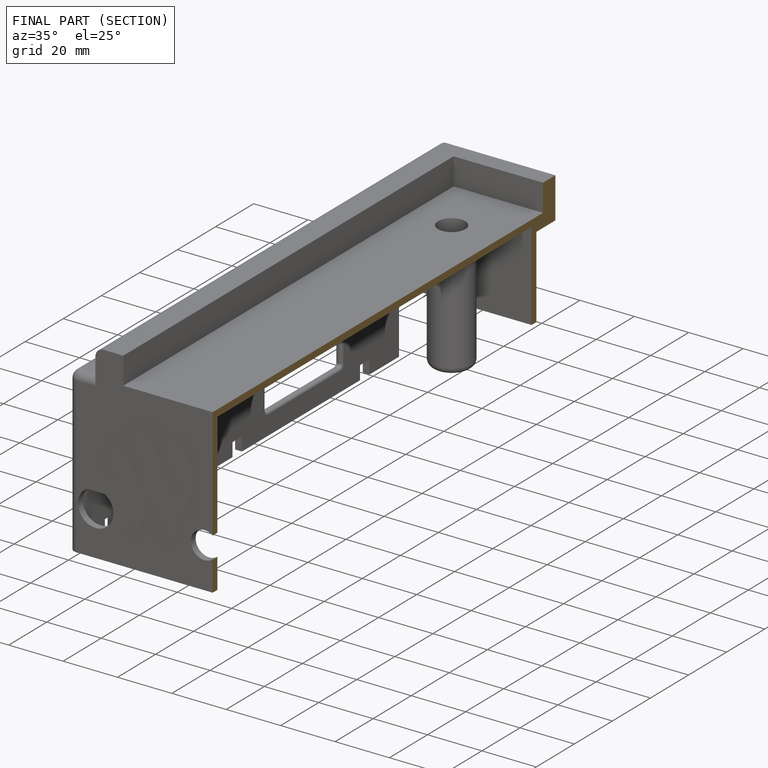
[diagram: finished part — half-section view (interior)]
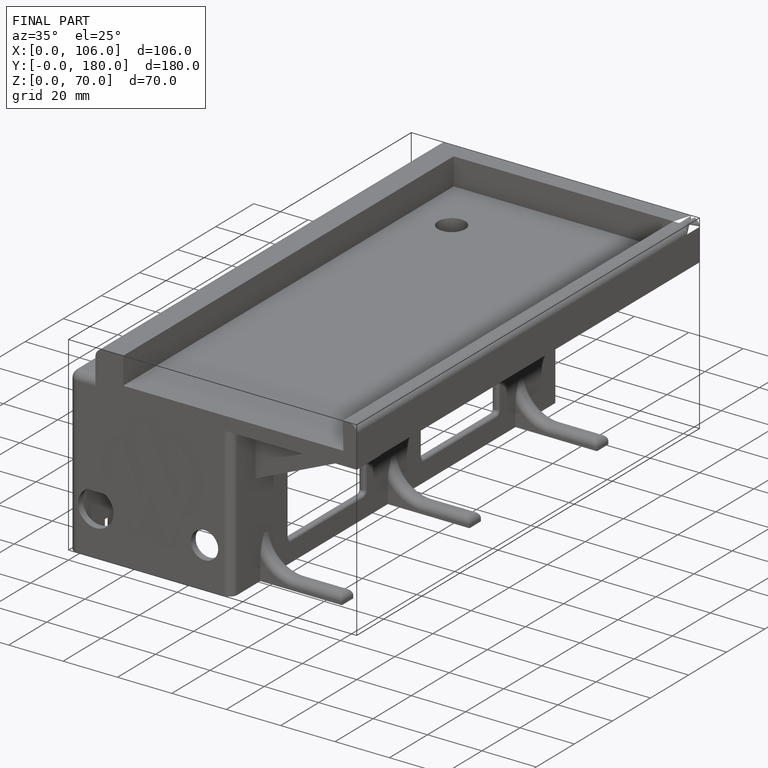
[diagram: finished part — iso view with bounding-box wireframe]
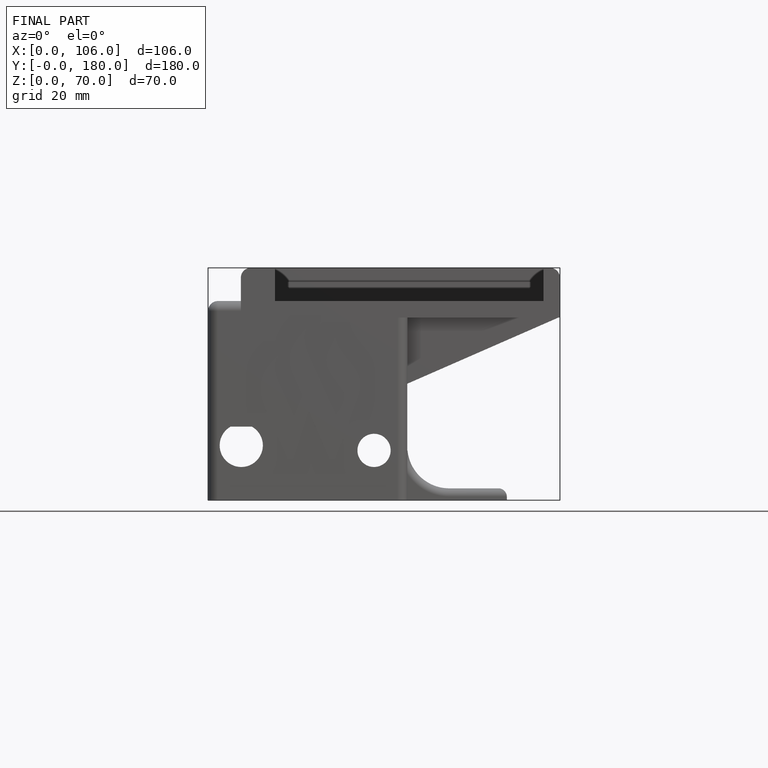
[diagram: finished part — front view with bounding-box wireframe]
